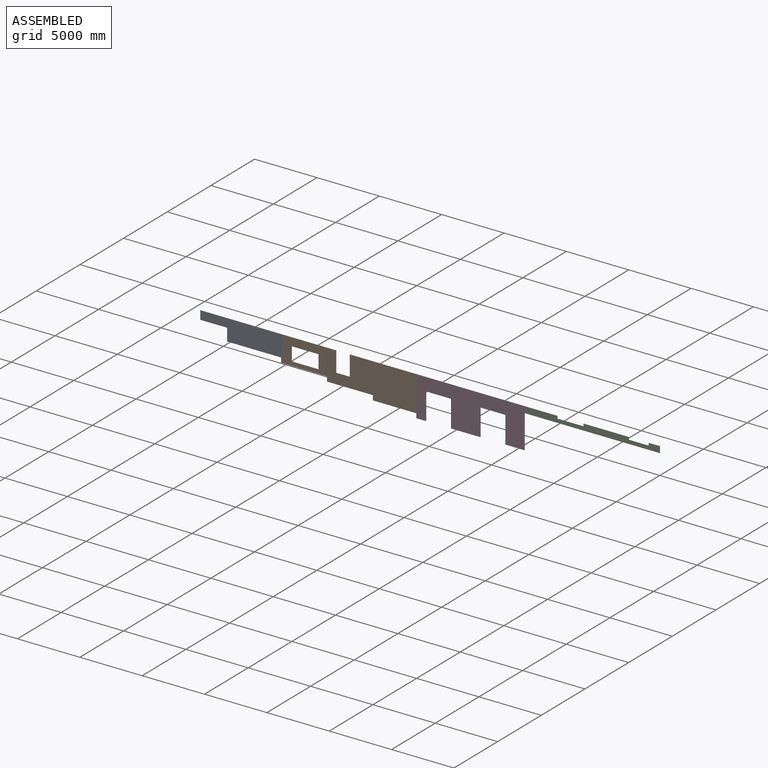
[diagram: assembled view]
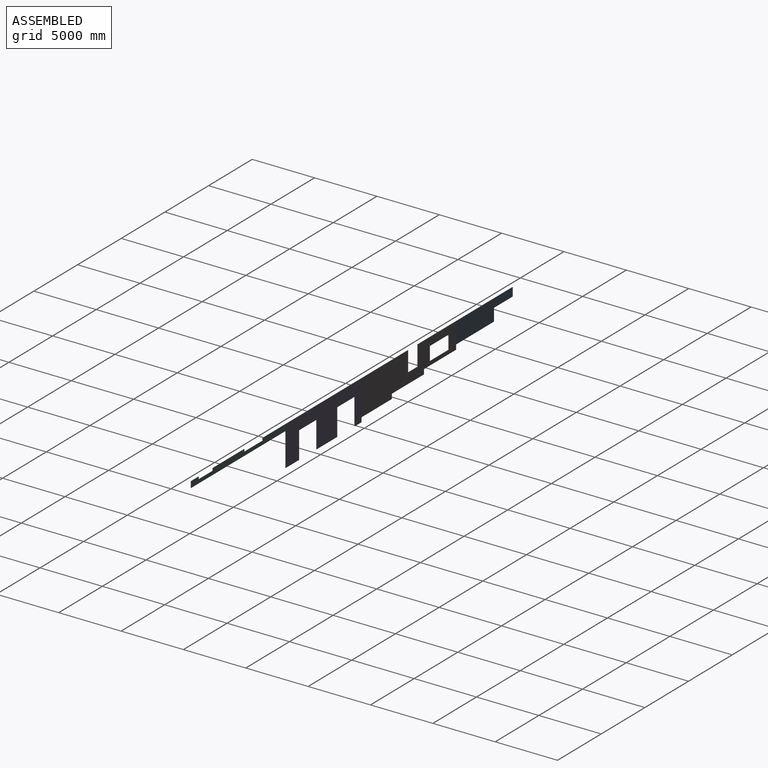
[diagram: assembled view, second angle]
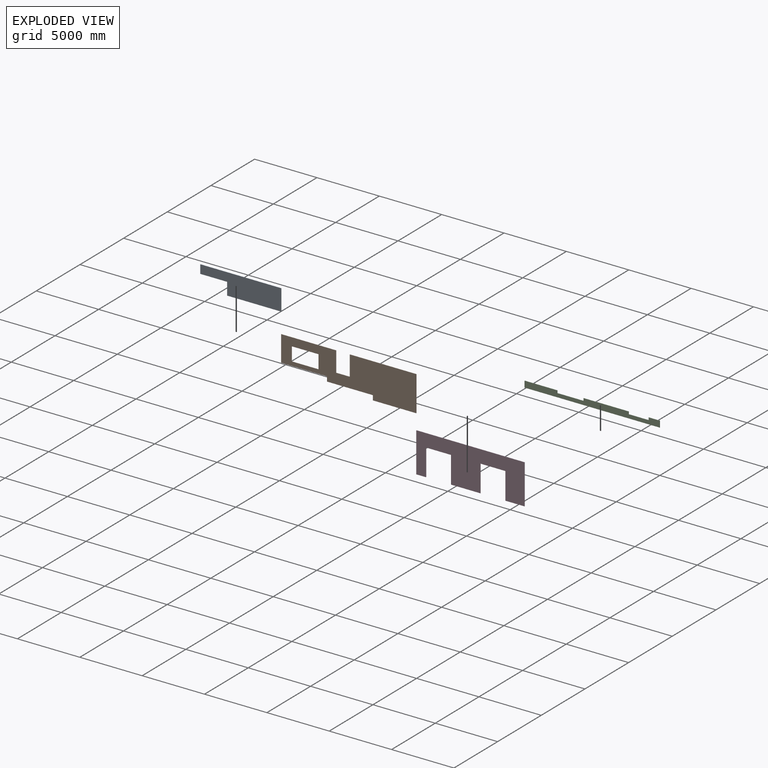
[diagram: exploded view]
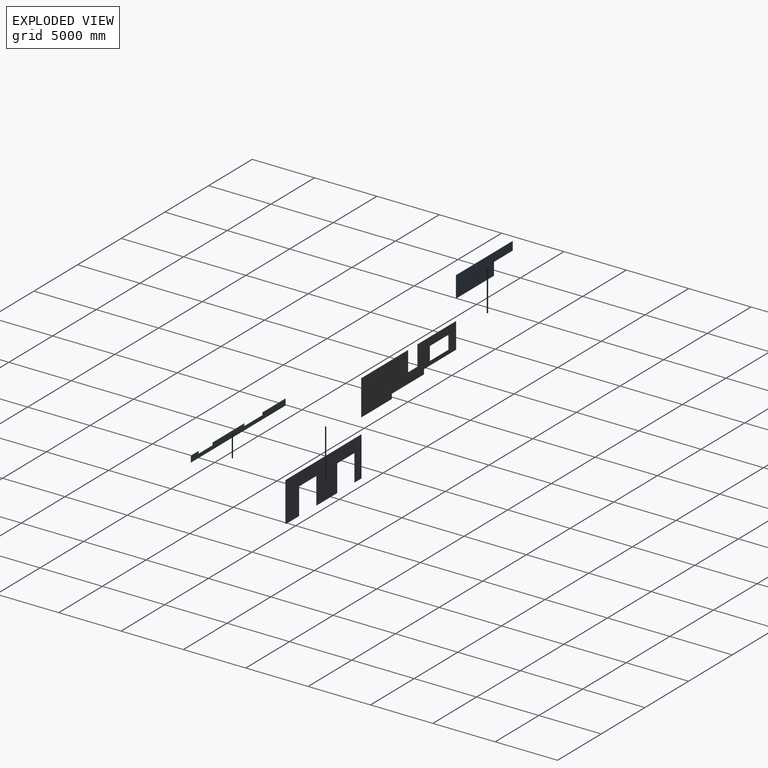
[diagram: exploded view, second angle]
ASSEMBLY  parts=4 mates=3
PART A: 8 faces, bbox 6480x25x1690 mm
  f0: plane 6480x25mm, normal (0,0,1), area 162000mm2, adj f1,f5,f6,f7
  f1: plane 690x25mm, normal (-1,0,0), area 17250mm2, adj f0,f2,f6,f7
  f2: plane 2150x25mm, normal (0,0,-1), area 53750mm2, adj f1,f3,f6,f7
  f3: plane 1000x25mm, normal (-1,0,0), area 25000mm2, adj f2,f4,f6,f7
  f4: plane 4330x25mm, normal (0,0,-1), area 108250mm2, adj f3,f5,f6,f7
  f5: plane 1690x25mm, normal (1,0,0), area 42250mm2, adj f0,f4,f6,f7
  f6: plane 6480x1690mm, normal (0,-1,0), area 8801200mm2, adj f0,f1,f2,f3,f4,f5
  f7: plane 6480x1690mm, normal (0,1,0), area 8801200mm2, adj f0,f1,f2,f3,f4,f5
PART B: 18 faces, bbox 10840x25x2830 mm
  f0: plane 2150x25mm, normal (0,0,-1), area 53750mm2, adj f1,f15,f16,f17
  f1: plane 1100x25mm, normal (-1,0,0), area 27500mm2, adj f0,f2,f16,f17
  f2: plane 2150x25mm, normal (0,0,1), area 53750mm2, adj f1,f15,f16,f17
  f3: plane 2830x25mm, normal (1,0,0), area 70750mm2, adj f4,f14,f16,f17
  f4: plane 5340x25mm, normal (0,0,1), area 133500mm2, adj f3,f5,f16,f17
  f5: plane 1620x25mm, normal (-1,0,0), area 40500mm2, adj f4,f6,f16,f17
  f6: plane 1100x25mm, normal (0,0,1), area 27500mm2, adj f5,f7,f16,f17
  f7: plane 1620x25mm, normal (1,0,0), area 40500mm2, adj f6,f8,f16,f17
  f8: plane 4400x25mm, normal (0,0,1), area 110000mm2, adj f7,f9,f16,f17
  f9: plane 2070x25mm, normal (-1,0,0), area 51750mm2, adj f8,f10,f16,f17
  f10: plane 3677.86x25mm, normal (0,0,-1), area 91946.4mm2, adj f9,f11,f16,f17
  f11: plane 380x25mm, normal (-1,0,0), area 9500mm2, adj f10,f12,f16,f17
  f12: plane 3677.86x25mm, normal (0,0,-1), area 91946.4mm2, adj f11,f13,f16,f17
  f13: plane 380x25mm, normal (-1,0,0), area 9500mm2, adj f12,f14,f16,f17
  f14: plane 3484.29x25mm, normal (0,0,-1), area 87107.1mm2, adj f3,f13,f16,f17
  f15: plane 1100x25mm, normal (1,0,0), area 27500mm2, adj f0,f2,f16,f17
  f16: plane 10840x2830mm, normal (0,-1,0), area 22337442.9mm2, adj f0,f1,f2,f3,f4,f5,f6,f7
  f17: plane 10840x2830mm, normal (0,1,0), area 22337442.9mm2, adj f0,f1,f2,f3,f4,f5,f6,f7
PART C: 14 faces, bbox 10840x25x500 mm
  f0: plane 2630x25mm, normal (0,0,1), area 65750mm2, adj f1,f11,f12,f13
  f1: plane 500x25mm, normal (-1,0,0), area 12500mm2, adj f0,f2,f12,f13
  f2: plane 10840x25mm, normal (0,0,-1), area 271000mm2, adj f1,f3,f12,f13
  f3: plane 500x25mm, normal (1,0,0), area 12500mm2, adj f2,f4,f12,f13
  f4: plane 890x25mm, normal (0,0,1), area 22250mm2, adj f3,f5,f12,f13
  f5: plane 200x25mm, normal (-1,0,0), area 5000mm2, adj f4,f6,f12,f13
  f6: plane 1600x25mm, normal (0,0,1), area 40000mm2, adj f5,f7,f12,f13
  f7: plane 200x25mm, normal (1,0,0), area 5000mm2, adj f6,f8,f12,f13
  f8: plane 3620x25mm, normal (0,0,1), area 90500mm2, adj f7,f9,f12,f13
  f9: plane 200x25mm, normal (-1,0,0), area 5000mm2, adj f8,f10,f12,f13
  f10: plane 2100x25mm, normal (0,0,1), area 52500mm2, adj f9,f11,f12,f13
  f11: plane 200x25mm, normal (1,0,0), area 5000mm2, adj f0,f10,f12,f13
  f12: plane 10840x500mm, normal (0,-1,0), area 4680000mm2, adj f0,f1,f2,f3,f4,f5,f6,f7
  f13: plane 10840x500mm, normal (0,1,0), area 4680000mm2, adj f0,f1,f2,f3,f4,f5,f6,f7
PART D: 14 faces, bbox 8680x25x3190 mm
  f0: plane 8680x25mm, normal (0,0,1), area 217000mm2, adj f1,f11,f12,f13
  f1: plane 3190x25mm, normal (-1,0,0), area 79750mm2, adj f0,f2,f12,f13
  f2: plane 780x25mm, normal (0,0,-1), area 19500mm2, adj f1,f3,f12,f13
  f3: plane 2150x25mm, normal (1,0,0), area 53750mm2, adj f2,f4,f12,f13
  f4: plane 2000x25mm, normal (0,0,-1), area 50000mm2, adj f3,f5,f12,f13
  f5: plane 2150x25mm, normal (-1,0,0), area 53750mm2, adj f4,f6,f12,f13
  f6: plane 2360x25mm, normal (0,0,-1), area 59000mm2, adj f5,f7,f12,f13
  f7: plane 2150x25mm, normal (1,0,0), area 53750mm2, adj f6,f8,f12,f13
  f8: plane 2000x25mm, normal (0,0,-1), area 50000mm2, adj f7,f9,f12,f13
  f9: plane 2150x25mm, normal (-1,0,0), area 53750mm2, adj f8,f10,f12,f13
  f10: plane 1540x25mm, normal (0,0,-1), area 38500mm2, adj f9,f11,f12,f13
  f11: plane 3190x25mm, normal (1,0,0), area 79750mm2, adj f0,f10,f12,f13
  f12: plane 8680x3190mm, normal (0,-1,0), area 19089200mm2, adj f0,f1,f2,f3,f4,f5,f6,f7
  f13: plane 8680x3190mm, normal (0,1,0), area 19089200mm2, adj f0,f1,f2,f3,f4,f5,f6,f7
PLACE A t=(17003.08,12.5,6051.26)mm
PLACE B t=(17003.08,12.5,6051.26)mm
PLACE C t=(17003.08,12.5,6051.26)mm
PLACE D t=(17003.08,12.5,6051.26)mm
MATE fastened B.f8 <-> A.f0  axis (0,0,1) through (-13356.92,-12.5,6251.26)mm
MATE fastened D.f0 <-> B.f4  axis (0,0,1) through (-2516.92,-12.5,6251.26)mm
MATE fastened C.f0 <-> D.f0  axis (0,0,-1) through (6163.08,-12.5,6251.26)mm
